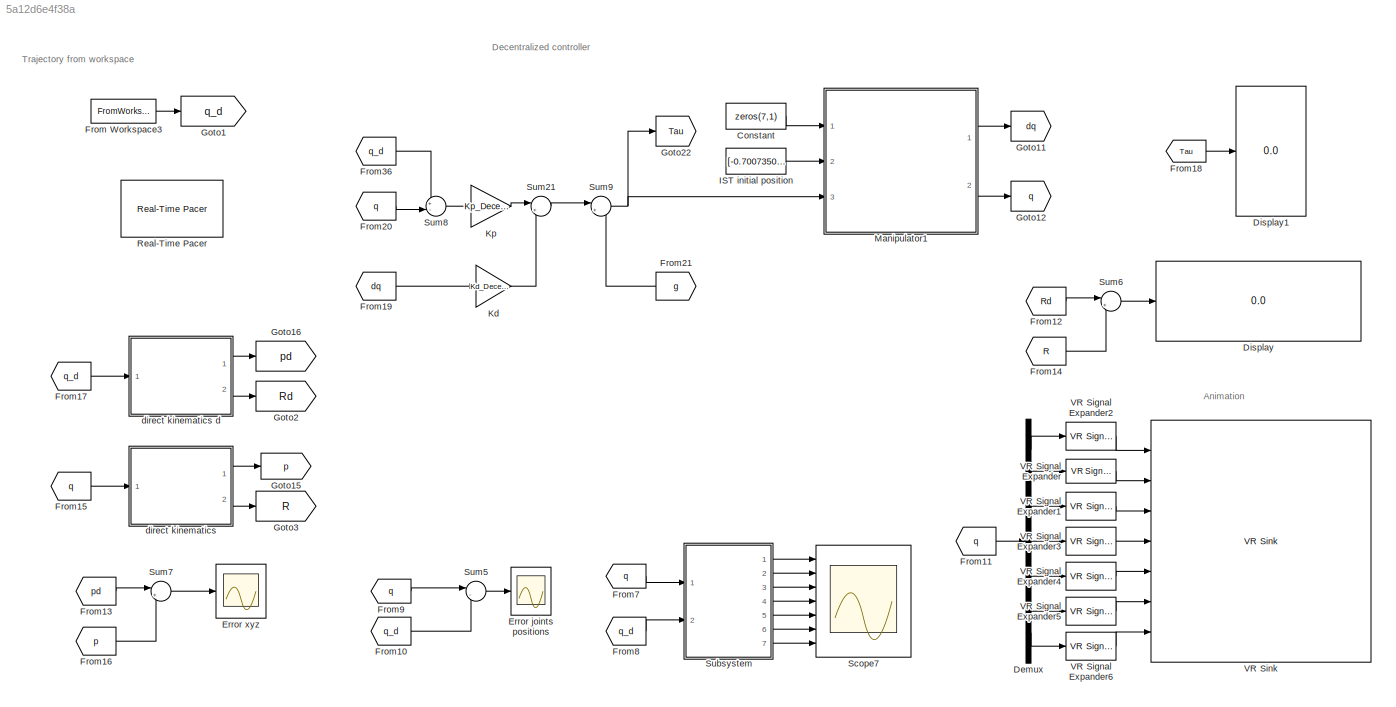
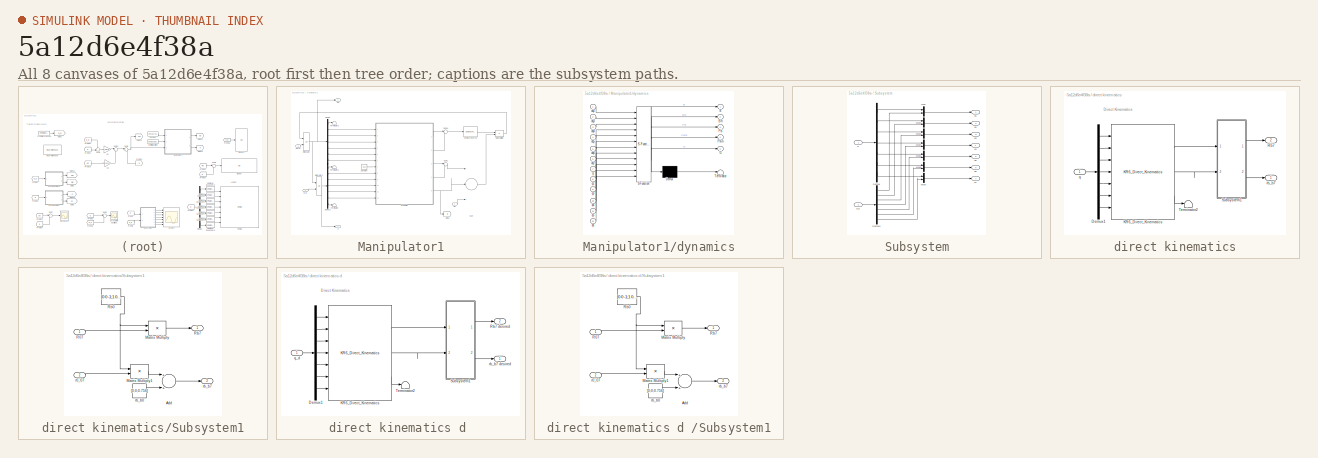
[diagram: thumbnail index - all 8 canvases of the model, root first then tree order]
MODEL slx_5a12d6e4f38a
KIND model
CONFIG AbsTol = auto
CONFIG EnableMultiTasking = off
CONFIG FixedStep = auto
CONFIG MaxStep = auto
CONFIG MinStep = auto
CONFIG RelTol = 1e-3
CONFIG SampleTimeConstraint = Unconstrained
CONFIG Solver = VariableStepAuto
CONFIG SolverName = VariableStepAuto
CONFIG StartTime = 0.0
CONFIG StopTime = 20
BLOCK [Constant] Constant
  Value = zeros(7,1)
BLOCK [Demux] Demux
  DisplayOption = bar
  Outputs = 7
  Ports = [1, 7]
BLOCK [Display] Display
  Decimation = 1
  Ports = [1]
BLOCK [Display] Display1
  Decimation = 1
  Ports = [1]
BLOCK [Scope] Error joints positions
  Floating = off
  NumInputPorts = 1
  Ports = [1]
  ScopeSpecificationString = Simulink.scopes.TimeScopeBlockCfg('CurrentConfiguration', extmgr.ConfigurationSet(extmgr.Configuration('Core','General UI',true),extmgr.Configuration('Core','Source UI',true),extmgr.Configuration('Sources','WiredSimulink',true,'DataLoggingVariableName','TrackingErrors','DataLogging',true,'DataLoggingSaveFormat','StructureWithTime'),extmgr.Configuration('Visuals','Time Domain',true,'SerializedDispl...<+1722ch>
BLOCK [Scope] Error xyz
  Floating = off
  NumInputPorts = 1
  Ports = [1]
  ScopeSpecificationString = Simulink.scopes.TimeScopeBlockCfg('CurrentConfiguration', extmgr.ConfigurationSet(extmgr.Configuration('Core','General UI',true),extmgr.Configuration('Core','Source UI',true),extmgr.Configuration('Sources','WiredSimulink',true,'DataLoggingVariableName','ScopeData2'),extmgr.Configuration('Visuals','Time Domain',true,'SerializedDisplays',{struct('MinYLimReal','-0.0427','MaxYLimReal','0.01291','YLabe...<+1797ch>
BLOCK [FromWorkspace] From Workspace3
  SampleTime = 0
  VariableName = q_d
  ZeroCross = on
BLOCK [From] From10
  GotoTag = q_d
BLOCK [From] From11
  GotoTag = q
BLOCK [From] From12
  GotoTag = Rd
BLOCK [From] From13
  GotoTag = pd
BLOCK [From] From14
  GotoTag = R
BLOCK [From] From15
  GotoTag = q
BLOCK [From] From16
  GotoTag = p
BLOCK [From] From17
  GotoTag = q_d
BLOCK [From] From18
  GotoTag = Tau
BLOCK [From] From19
  GotoTag = dq
BLOCK [From] From20
  GotoTag = q
BLOCK [From] From21
  GotoTag = g
  TagVisibility = global
BLOCK [From] From36
  GotoTag = q_d
BLOCK [From] From7
  GotoTag = q
BLOCK [From] From8
  GotoTag = q_d
BLOCK [From] From9
  GotoTag = q
BLOCK [Goto] Goto1
  GotoTag = q_d
BLOCK [Goto] Goto11
  GotoTag = dq
BLOCK [Goto] Goto12
  GotoTag = q
BLOCK [Goto] Goto15
  GotoTag = p
BLOCK [Goto] Goto16
  GotoTag = pd
BLOCK [Goto] Goto2
  GotoTag = Rd
BLOCK [Goto] Goto22
  GotoTag = Tau
BLOCK [Goto] Goto3
  GotoTag = R
BLOCK [Constant] IST initial position
  Value = [-0.700735072364346    0.260226322165590    -1.41409718169695    0.123044715609812    0.767247092108692    -0.379724450954367    0.840390763239879]
BLOCK [Gain] Kd
  Gain = Kd_Decent
  Multiplication = Matrix(K*u)
  OutDataTypeStr = Inherit: Inherit via internal rule
  ParamDataTypeStr = Inherit: Inherit via internal rule
  SaturateOnIntegerOverflow = off
BLOCK [Gain] Kp
  Gain = Kp_Decent
  Multiplication = Matrix(K*u)
  OutDataTypeStr = Inherit: Inherit via internal rule
  ParamDataTypeStr = Inherit: Inherit via internal rule
  SaturateOnIntegerOverflow = off
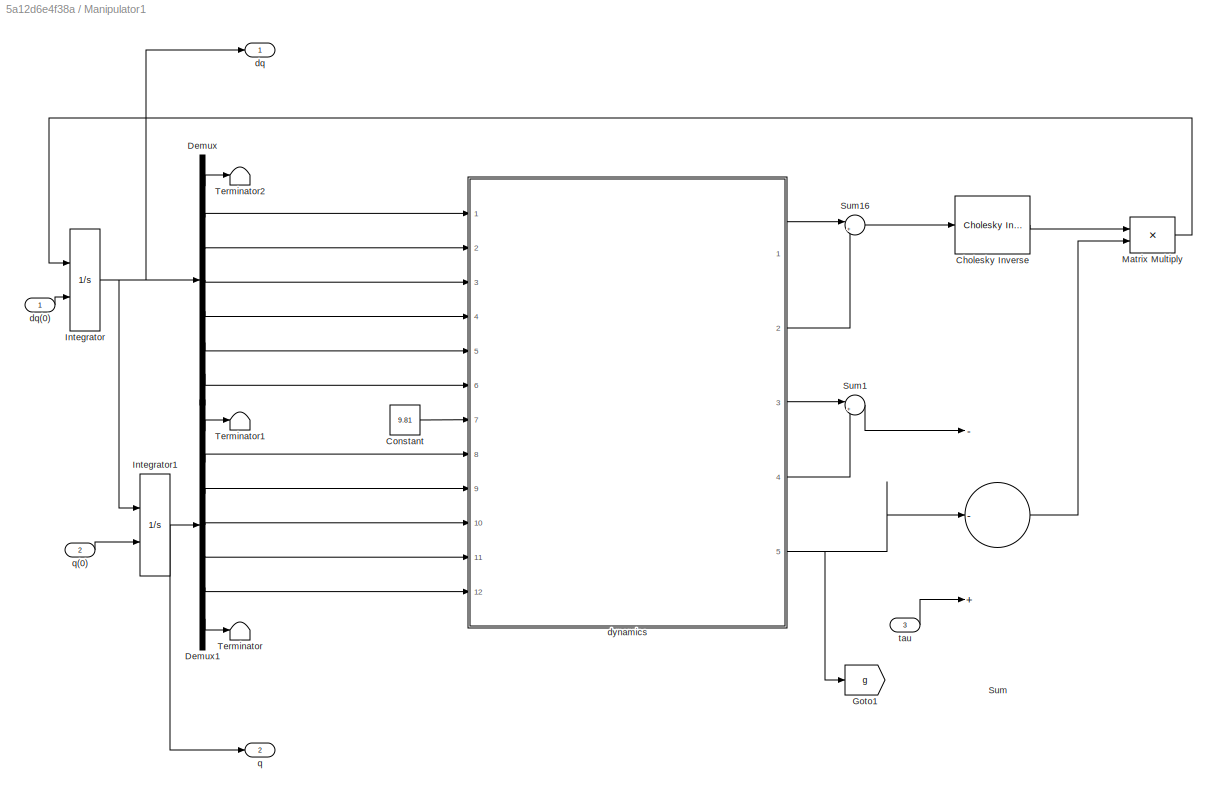
BLOCK [SubSystem] Manipulator1
  Ports = [3, 2]
  RequestExecContextInheritance = off
BLOCK [Reference] Manipulator1/Cholesky Inverse  REF=dspinverses/Cholesky Inverse
  Ports = [1, 1]
  SourceBlock = dspinverses/Cholesky Inverse
  SourceProductBaseCode = DS
  SourceProductName = DSP System Toolbox
  SourceType = Cholesky Inverse
BLOCK [Constant] Manipulator1/Constant
  Value = 9.81
BLOCK [Demux] Manipulator1/Demux
  DisplayOption = bar
  Outputs = 7
  Ports = [1, 7]
BLOCK [Demux] Manipulator1/Demux1
  DisplayOption = bar
  Outputs = 7
  Ports = [1, 7]
BLOCK [Goto] Manipulator1/Goto1
  GotoTag = g
  TagVisibility = global
BLOCK [Integrator] Manipulator1/Integrator
  InitialConditionSource = external
  Ports = [2, 1]
BLOCK [Integrator] Manipulator1/Integrator1
  InitialConditionSource = external
  Ports = [2, 1]
BLOCK [Product] Manipulator1/Matrix Multiply
  InputSameDT = off
  Multiplication = Matrix(*)
  OutDataTypeStr = Inherit: Inherit via internal rule
  Ports = [2, 1]
  RndMeth = Floor
  SaturateOnIntegerOverflow = off
BLOCK [Sum] Manipulator1/Sum
  InputSameDT = off
  Inputs = --+
  OutDataTypeStr = Inherit: Inherit via internal rule
  Ports = [3, 1]
  SaturateOnIntegerOverflow = off
BLOCK [Sum] Manipulator1/Sum1
  IconShape = round
  InputSameDT = off
  Inputs = |++
  OutDataTypeStr = Inherit: Inherit via internal rule
  Ports = [2, 1]
  SaturateOnIntegerOverflow = off
BLOCK [Sum] Manipulator1/Sum16
  IconShape = round
  InputSameDT = off
  Inputs = |++
  OutDataTypeStr = Inherit: Inherit via internal rule
  Ports = [2, 1]
  SaturateOnIntegerOverflow = off
BLOCK [Terminator] Manipulator1/Terminator
BLOCK [Terminator] Manipulator1/Terminator1
BLOCK [Terminator] Manipulator1/Terminator2
BLOCK [Outport] Manipulator1/dq
  IconDisplay = Port number
BLOCK [Inport] Manipulator1/dq(0) 
  IconDisplay = Port number
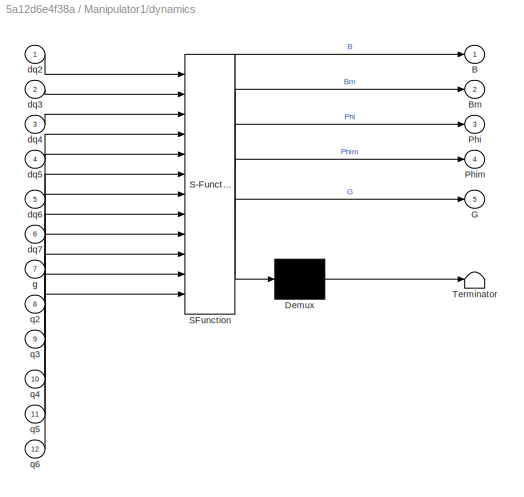
BLOCK [SubSystem] Manipulator1/dynamics
  ErrorFcn = Stateflow.Translate.translate
  PermitHierarchicalResolution = ExplicitOnly
  Ports = [12, 5]
  RequestExecContextInheritance = off
  SFBlockType = MATLAB Function
  TreatAsAtomicUnit = on
BLOCK [Demux] Manipulator1/dynamics/ Demux 
  Outputs = 1
  Ports = [1, 1]
BLOCK [S-Function] Manipulator1/dynamics/ SFunction 
  EnableBusSupport = on
  FunctionName = sf_sfun
  PortCounts = [12 6]
  Ports = [12, 6]
  SFcnIsStateOwnerBlock = off
  SFunctionDeploymentMode = off
  Tag = Stateflow S-Function KR6_Decentralized_Trajectory 12
BLOCK [Terminator] Manipulator1/dynamics/ Terminator 
BLOCK [Outport] Manipulator1/dynamics/B
  IconDisplay = Port number
BLOCK [Outport] Manipulator1/dynamics/Bm
  IconDisplay = Port number
  Port = 2
BLOCK [Outport] Manipulator1/dynamics/G
  IconDisplay = Port number
  Port = 5
BLOCK [Outport] Manipulator1/dynamics/Phi
  IconDisplay = Port number
  Port = 3
BLOCK [Outport] Manipulator1/dynamics/Phim
  IconDisplay = Port number
  Port = 4
BLOCK [Inport] Manipulator1/dynamics/dq2
  IconDisplay = Port number
BLOCK [Inport] Manipulator1/dynamics/dq3
  IconDisplay = Port number
  Port = 2
BLOCK [Inport] Manipulator1/dynamics/dq4
  IconDisplay = Port number
  Port = 3
BLOCK [Inport] Manipulator1/dynamics/dq5
  IconDisplay = Port number
  Port = 4
BLOCK [Inport] Manipulator1/dynamics/dq6
  IconDisplay = Port number
  Port = 5
BLOCK [Inport] Manipulator1/dynamics/dq7
  IconDisplay = Port number
  Port = 6
BLOCK [Inport] Manipulator1/dynamics/g
  IconDisplay = Port number
  Port = 7
BLOCK [Inport] Manipulator1/dynamics/q2
  IconDisplay = Port number
  Port = 8
BLOCK [Inport] Manipulator1/dynamics/q3
  IconDisplay = Port number
  Port = 9
BLOCK [Inport] Manipulator1/dynamics/q4
  IconDisplay = Port number
  Port = 10
BLOCK [Inport] Manipulator1/dynamics/q5
  IconDisplay = Port number
  Port = 11
BLOCK [Inport] Manipulator1/dynamics/q6
  IconDisplay = Port number
  Port = 12
BLOCK [Outport] Manipulator1/q
  IconDisplay = Port number
  Port = 2
BLOCK [Inport] Manipulator1/q(0) 
  IconDisplay = Port number
  Port = 2
BLOCK [Inport] Manipulator1/tau
  IconDisplay = Port number
  Port = 3
BLOCK [Reference] Real-Time Pacer  REF=realtime_pacer_lib/Real-Time Pacer
  Ports = []
  SourceBlock = realtime_pacer_lib/Real-Time Pacer
  SourceType = RealTime_Pacer
BLOCK [Scope] Scope7
  Floating = off
  NumInputPorts = 7
  Ports = [7]
  ScopeSpecificationString = Simulink.scopes.TimeScopeBlockCfg('CurrentConfiguration', extmgr.ConfigurationSet(extmgr.Configuration('Core','General UI',true),extmgr.Configuration('Core','Source UI',true),extmgr.Configuration('Sources','WiredSimulink',true,'DataLoggingVariableName','ScopeData7'),extmgr.Configuration('Visuals','Time Domain',true,'SerializedDisplays',{struct('MinYLimReal','-0.18751','MaxYLimReal','1.6876','YLabe...<+6624ch>
BLOCK [SubSystem] Subsystem
  Ports = [2, 7]
  RequestExecContextInheritance = off
BLOCK [Demux] Subsystem/Demux
  DisplayOption = bar
  Outputs = 7
  Ports = [1, 7]
BLOCK [Demux] Subsystem/Demux1
  DisplayOption = bar
  Outputs = 7
  Ports = [1, 7]
BLOCK [Mux] Subsystem/Mux
  DisplayOption = bar
  Inputs = 2
  Ports = [2, 1]
BLOCK [Mux] Subsystem/Mux2
  DisplayOption = bar
  Inputs = 2
  Ports = [2, 1]
BLOCK [Mux] Subsystem/Mux3
  DisplayOption = bar
  Inputs = 2
  Ports = [2, 1]
BLOCK [Mux] Subsystem/Mux4
  DisplayOption = bar
  Inputs = 2
  Ports = [2, 1]
BLOCK [Mux] Subsystem/Mux5
  DisplayOption = bar
  Inputs = 2
  Ports = [2, 1]
BLOCK [Mux] Subsystem/Mux6
  DisplayOption = bar
  Inputs = 2
  Ports = [2, 1]
BLOCK [Mux] Subsystem/Mux7
  DisplayOption = bar
  Inputs = 2
  Ports = [2, 1]
BLOCK [Inport] Subsystem/q
  IconDisplay = Port number
BLOCK [Outport] Subsystem/q1
  IconDisplay = Port number
BLOCK [Outport] Subsystem/q2
  IconDisplay = Port number
  Port = 2
BLOCK [Outport] Subsystem/q3
  IconDisplay = Port number
  Port = 3
BLOCK [Outport] Subsystem/q4
  IconDisplay = Port number
  Port = 4
BLOCK [Outport] Subsystem/q5
  IconDisplay = Port number
  Port = 5
BLOCK [Outport] Subsystem/q6
  IconDisplay = Port number
  Port = 6
BLOCK [Outport] Subsystem/q7
  IconDisplay = Port number
  Port = 7
BLOCK [Inport] Subsystem/q_d
  IconDisplay = Port number
  Port = 2
BLOCK [Sum] Sum21
  IconShape = round
  InputSameDT = off
  Inputs = |+-
  OutDataTypeStr = Inherit: Inherit via internal rule
  Ports = [2, 1]
  SaturateOnIntegerOverflow = off
BLOCK [Sum] Sum5
  IconShape = round
  InputSameDT = off
  Inputs = |-+
  OutDataTypeStr = Inherit: Inherit via internal rule
  Ports = [2, 1]
  SaturateOnIntegerOverflow = off
BLOCK [Sum] Sum6
  IconShape = round
  InputSameDT = off
  Inputs = |+-
  OutDataTypeStr = Inherit: Inherit via internal rule
  Ports = [2, 1]
  SaturateOnIntegerOverflow = off
BLOCK [Sum] Sum7
  IconShape = round
  InputSameDT = off
  Inputs = |+-
  OutDataTypeStr = Inherit: Inherit via internal rule
  Ports = [2, 1]
  SaturateOnIntegerOverflow = off
BLOCK [Sum] Sum8
  IconShape = round
  InputSameDT = off
  Inputs = +-|
  OutDataTypeStr = Inherit: Inherit via internal rule
  Ports = [2, 1]
  SaturateOnIntegerOverflow = off
BLOCK [Sum] Sum9
  IconShape = round
  InputSameDT = off
  Inputs = |++
  OutDataTypeStr = Inherit: Inherit via internal rule
  Ports = [2, 1]
  SaturateOnIntegerOverflow = off
BLOCK [Reference] VR Signal Expander  REF=vrlib/VR Signal Expander
  Ports = [1, 1]
  SourceBlock = vrlib/VR Signal Expander
  SourceProductBaseCode = VR
  SourceProductName = Simulink 3D Animation
  SourceType = VR Signal Expander
BLOCK [Reference] VR Signal Expander1  REF=vrlib/VR Signal Expander
  Ports = [1, 1]
  SourceBlock = vrlib/VR Signal Expander
  SourceProductBaseCode = VR
  SourceProductName = Simulink 3D Animation
  SourceType = VR Signal Expander
BLOCK [Reference] VR Signal Expander2  REF=vrlib/VR Signal Expander
  Ports = [1, 1]
  SourceBlock = vrlib/VR Signal Expander
  SourceProductBaseCode = VR
  SourceProductName = Simulink 3D Animation
  SourceType = VR Signal Expander
BLOCK [Reference] VR Signal Expander3  REF=vrlib/VR Signal Expander
  Ports = [1, 1]
  SourceBlock = vrlib/VR Signal Expander
  SourceProductBaseCode = VR
  SourceProductName = Simulink 3D Animation
  SourceType = VR Signal Expander
BLOCK [Reference] VR Signal Expander4  REF=vrlib/VR Signal Expander
  Ports = [1, 1]
  SourceBlock = vrlib/VR Signal Expander
  SourceProductBaseCode = VR
  SourceProductName = Simulink 3D Animation
  SourceType = VR Signal Expander
BLOCK [Reference] VR Signal Expander5  REF=vrlib/VR Signal Expander
  Ports = [1, 1]
  SourceBlock = vrlib/VR Signal Expander
  SourceProductBaseCode = VR
  SourceProductName = Simulink 3D Animation
  SourceType = VR Signal Expander
BLOCK [Reference] VR Signal Expander6  REF=vrlib/VR Signal Expander
  Ports = [1, 1]
  SourceBlock = vrlib/VR Signal Expander
  SourceProductBaseCode = VR
  SourceProductName = Simulink 3D Animation
  SourceType = VR Signal Expander
BLOCK [Reference] VR Sink  REF=vrlib/VR Sink
  InstantiateOnLoad = on
  Ports = [7]
  SourceBlock = vrlib/VR Sink
  SourceProductBaseCode = VR
  SourceProductName = Simulink 3D Animation
  SourceType = Virtual Reality Sink
BLOCK [SubSystem] direct kinematics
  Ports = [1, 2]
  RequestExecContextInheritance = off
BLOCK [SubSystem] direct kinematics d 
  Ports = [1, 2]
  RequestExecContextInheritance = off
BLOCK [Demux] direct kinematics d /Demux1
  DisplayOption = bar
  Outputs = 7
  Ports = [1, 7]
BLOCK [Reference] direct kinematics d /KR6_Direct_Kinematics  REF=KR6_Lib/KR6_Direct_Kinematics
  Ports = [7, 3]
  SourceBlock = KR6_Lib/KR6_Direct_Kinematics
  SourceType = SubSystem
BLOCK [Outport] direct kinematics d /Rb7 desired
  IconDisplay = Port number
  Port = 2
BLOCK [SubSystem] direct kinematics d /Subsystem1
  Ports = [2, 2]
  RequestExecContextInheritance = off
BLOCK [Sum] direct kinematics d /Subsystem1/Add
  InputSameDT = off
  OutDataTypeStr = Inherit: Inherit via internal rule
  Ports = [2, 1]
  SaturateOnIntegerOverflow = off
BLOCK [Product] direct kinematics d /Subsystem1/Matrix Multiply
  InputSameDT = off
  Multiplication = Matrix(*)
  OutDataTypeStr = Inherit: Inherit via internal rule
  Ports = [2, 1]
  RndMeth = Floor
  SaturateOnIntegerOverflow = off
BLOCK [Product] direct kinematics d /Subsystem1/Matrix Multiply1
  InputSameDT = off
  Multiplication = Matrix(*)
  OutDataTypeStr = Inherit: Inherit via internal rule
  Ports = [2, 1]
  RndMeth = Floor
  SaturateOnIntegerOverflow = off
BLOCK [Inport] direct kinematics d /Subsystem1/R07
  IconDisplay = Port number
BLOCK [Constant] direct kinematics d /Subsystem1/Rb0
  Value = [0 0 -1;1 0 0; 0 -1 0]
BLOCK [Outport] direct kinematics d /Subsystem1/Rb7
  IconDisplay = Port number
BLOCK [Inport] direct kinematics d /Subsystem1/r0_07
  IconDisplay = Port number
  Port = 2
BLOCK [Constant] direct kinematics d /Subsystem1/rb_b0
  Value = [0;0;0.756]
BLOCK [Outport] direct kinematics d /Subsystem1/rb_b7
  IconDisplay = Port number
  Port = 2
BLOCK [Terminator] direct kinematics d /Terminator2
BLOCK [Inport] direct kinematics d /q_d
  IconDisplay = Port number
BLOCK [Outport] direct kinematics d /rb_b7 desired
  IconDisplay = Port number
BLOCK [Demux] direct kinematics/Demux1
  DisplayOption = bar
  Outputs = 7
  Ports = [1, 7]
BLOCK [Reference] direct kinematics/KR6_Direct_Kinematics  REF=KR6_Lib/KR6_Direct_Kinematics
  Ports = [7, 3]
  SourceBlock = KR6_Lib/KR6_Direct_Kinematics
  SourceType = SubSystem
BLOCK [Outport] direct kinematics/Rb7
  IconDisplay = Port number
  Port = 2
BLOCK [SubSystem] direct kinematics/Subsystem1
  Ports = [2, 2]
  RequestExecContextInheritance = off
BLOCK [Sum] direct kinematics/Subsystem1/Add
  InputSameDT = off
  OutDataTypeStr = Inherit: Inherit via internal rule
  Ports = [2, 1]
  SaturateOnIntegerOverflow = off
BLOCK [Product] direct kinematics/Subsystem1/Matrix Multiply
  InputSameDT = off
  Multiplication = Matrix(*)
  OutDataTypeStr = Inherit: Inherit via internal rule
  Ports = [2, 1]
  RndMeth = Floor
  SaturateOnIntegerOverflow = off
BLOCK [Product] direct kinematics/Subsystem1/Matrix Multiply1
  InputSameDT = off
  Multiplication = Matrix(*)
  OutDataTypeStr = Inherit: Inherit via internal rule
  Ports = [2, 1]
  RndMeth = Floor
  SaturateOnIntegerOverflow = off
BLOCK [Inport] direct kinematics/Subsystem1/R07
  IconDisplay = Port number
BLOCK [Constant] direct kinematics/Subsystem1/Rb0
  Value = [0 0 -1;1 0 0; 0 -1 0]
BLOCK [Outport] direct kinematics/Subsystem1/Rb7
  IconDisplay = Port number
BLOCK [Inport] direct kinematics/Subsystem1/r0_07
  IconDisplay = Port number
  Port = 2
BLOCK [Constant] direct kinematics/Subsystem1/rb_b0
  Value = [0;0;0.756]
BLOCK [Outport] direct kinematics/Subsystem1/rb_b7
  IconDisplay = Port number
  Port = 2
BLOCK [Terminator] direct kinematics/Terminator2
BLOCK [Inport] direct kinematics/q
  IconDisplay = Port number
BLOCK [Outport] direct kinematics/rb_b7 
  IconDisplay = Port number
ANNOTATION (root): Animation
ANNOTATION (root): Decentralized controller
ANNOTATION (root): Trajectory from workspace
ANNOTATION direct kinematics: Direct Kinematics
ANNOTATION direct kinematics d : Direct Kinematics
LINE Constant:1 -> Manipulator1:1
LINE Demux:1 -> VR Signal Expander2:1
LINE Demux:2 -> VR Signal Expander:1
LINE Demux:3 -> VR Signal Expander1:1
LINE Demux:4 -> VR Signal Expander3:1
LINE Demux:5 -> VR Signal Expander4:1
LINE Demux:6 -> VR Signal Expander5:1
LINE Demux:7 -> VR Signal Expander6:1
LINE From Workspace3:1 -> Goto1:1
LINE From10:1 -> Sum5:2
LINE From11:1 -> Demux:1
LINE From12:1 -> Sum6:1
LINE From13:1 -> Sum7:1
LINE From14:1 -> Sum6:2
LINE From15:1 -> direct kinematics:1
LINE From16:1 -> Sum7:2
LINE From17:1 -> direct kinematics d :1
LINE From18:1 -> Display1:1
LINE From19:1 -> Kd:1
LINE From20:1 -> Sum8:2
LINE From21:1 -> Sum9:2
LINE From36:1 -> Sum8:1
LINE From7:1 -> Subsystem:1
LINE From8:1 -> Subsystem:2
LINE From9:1 -> Sum5:1
LINE IST initial position:1 -> Manipulator1:2
LINE Kd:1 -> Sum21:2
LINE Kp:1 -> Sum21:1
LINE Manipulator1/Cholesky Inverse:1 -> Manipulator1/Matrix Multiply:1
LINE Manipulator1/Constant:1 -> Manipulator1/dynamics:7
LINE Manipulator1/Demux1:1 -> Manipulator1/Terminator1:1
LINE Manipulator1/Demux1:2 -> Manipulator1/dynamics:8
LINE Manipulator1/Demux1:3 -> Manipulator1/dynamics:9
LINE Manipulator1/Demux1:4 -> Manipulator1/dynamics:10
LINE Manipulator1/Demux1:5 -> Manipulator1/dynamics:11
LINE Manipulator1/Demux1:6 -> Manipulator1/dynamics:12
LINE Manipulator1/Demux1:7 -> Manipulator1/Terminator:1
LINE Manipulator1/Demux:1 -> Manipulator1/Terminator2:1
LINE Manipulator1/Demux:2 -> Manipulator1/dynamics:1
LINE Manipulator1/Demux:3 -> Manipulator1/dynamics:2
LINE Manipulator1/Demux:4 -> Manipulator1/dynamics:3
LINE Manipulator1/Demux:5 -> Manipulator1/dynamics:4
LINE Manipulator1/Demux:6 -> Manipulator1/dynamics:5
LINE Manipulator1/Demux:7 -> Manipulator1/dynamics:6
NET Manipulator1/Integrator1:1 -> Manipulator1/Demux1:1, Manipulator1/q:1
NET Manipulator1/Integrator:1 -> Manipulator1/Demux:1, Manipulator1/Integrator1:1, Manipulator1/dq:1
LINE Manipulator1/Matrix Multiply:1 -> Manipulator1/Integrator:1
LINE Manipulator1/Sum16:1 -> Manipulator1/Cholesky Inverse:1
LINE Manipulator1/Sum1:1 -> Manipulator1/Sum:1
LINE Manipulator1/Sum:1 -> Manipulator1/Matrix Multiply:2
LINE Manipulator1/dq(0) :1 -> Manipulator1/Integrator:2
LINE Manipulator1/dynamics:1 -> Manipulator1/Sum16:1
LINE Manipulator1/dynamics:2 -> Manipulator1/Sum16:2
LINE Manipulator1/dynamics:3 -> Manipulator1/Sum1:1
LINE Manipulator1/dynamics:4 -> Manipulator1/Sum1:2
NET Manipulator1/dynamics:5 -> Manipulator1/Goto1:1, Manipulator1/Sum:2
LINE Manipulator1/q(0) :1 -> Manipulator1/Integrator1:2
LINE Manipulator1/tau:1 -> Manipulator1/Sum:3
LINE Manipulator1:1 -> Goto11:1
LINE Manipulator1:2 -> Goto12:1
LINE Subsystem/Demux1:1 -> Subsystem/Mux:2
LINE Subsystem/Demux1:2 -> Subsystem/Mux2:2
LINE Subsystem/Demux1:3 -> Subsystem/Mux3:2
LINE Subsystem/Demux1:4 -> Subsystem/Mux4:2
LINE Subsystem/Demux1:5 -> Subsystem/Mux5:2
LINE Subsystem/Demux1:6 -> Subsystem/Mux6:2
LINE Subsystem/Demux1:7 -> Subsystem/Mux7:2
LINE Subsystem/Demux:1 -> Subsystem/Mux:1
LINE Subsystem/Demux:2 -> Subsystem/Mux2:1
LINE Subsystem/Demux:3 -> Subsystem/Mux3:1
LINE Subsystem/Demux:4 -> Subsystem/Mux4:1
LINE Subsystem/Demux:5 -> Subsystem/Mux5:1
LINE Subsystem/Demux:6 -> Subsystem/Mux6:1
LINE Subsystem/Demux:7 -> Subsystem/Mux7:1
LINE Subsystem/Mux2:1 -> Subsystem/q2:1
LINE Subsystem/Mux3:1 -> Subsystem/q3:1
LINE Subsystem/Mux4:1 -> Subsystem/q4:1
LINE Subsystem/Mux5:1 -> Subsystem/q5:1
LINE Subsystem/Mux6:1 -> Subsystem/q6:1
LINE Subsystem/Mux7:1 -> Subsystem/q7:1
LINE Subsystem/Mux:1 -> Subsystem/q1:1
LINE Subsystem/q:1 -> Subsystem/Demux:1
LINE Subsystem/q_d:1 -> Subsystem/Demux1:1
LINE Subsystem:1 -> Scope7:1
LINE Subsystem:2 -> Scope7:2
LINE Subsystem:3 -> Scope7:3
LINE Subsystem:4 -> Scope7:4
LINE Subsystem:5 -> Scope7:5
LINE Subsystem:6 -> Scope7:6
LINE Subsystem:7 -> Scope7:7
LINE Sum21:1 -> Sum9:1
LINE Sum5:1 -> Error joints positions:1
LINE Sum6:1 -> Display:1
LINE Sum7:1 -> Error xyz:1
LINE Sum8:1 -> Kp:1
NET Sum9:1 -> Goto22:1, Manipulator1:3
LINE VR Signal Expander1:1 -> VR Sink:3
LINE VR Signal Expander2:1 -> VR Sink:1
LINE VR Signal Expander3:1 -> VR Sink:4
LINE VR Signal Expander4:1 -> VR Sink:5
LINE VR Signal Expander5:1 -> VR Sink:6
LINE VR Signal Expander6:1 -> VR Sink:7
LINE VR Signal Expander:1 -> VR Sink:2
LINE direct kinematics d /Demux1:1 -> direct kinematics d /KR6_Direct_Kinematics:1
LINE direct kinematics d /Demux1:2 -> direct kinematics d /KR6_Direct_Kinematics:2
LINE direct kinematics d /Demux1:3 -> direct kinematics d /KR6_Direct_Kinematics:3
LINE direct kinematics d /Demux1:4 -> direct kinematics d /KR6_Direct_Kinematics:4
LINE direct kinematics d /Demux1:5 -> direct kinematics d /KR6_Direct_Kinematics:5
LINE direct kinematics d /Demux1:6 -> direct kinematics d /KR6_Direct_Kinematics:6
LINE direct kinematics d /Demux1:7 -> direct kinematics d /KR6_Direct_Kinematics:7
LINE direct kinematics d /KR6_Direct_Kinematics:1 -> direct kinematics d /Subsystem1:1
LINE direct kinematics d /KR6_Direct_Kinematics:2 -> direct kinematics d /Subsystem1:2
LINE direct kinematics d /KR6_Direct_Kinematics:3 -> direct kinematics d /Terminator2:1
LINE direct kinematics d /Subsystem1/Add:1 -> direct kinematics d /Subsystem1/rb_b7:1
LINE direct kinematics d /Subsystem1/Matrix Multiply1:1 -> direct kinematics d /Subsystem1/Add:1
LINE direct kinematics d /Subsystem1/Matrix Multiply:1 -> direct kinematics d /Subsystem1/Rb7:1
LINE direct kinematics d /Subsystem1/R07:1 -> direct kinematics d /Subsystem1/Matrix Multiply:2
NET direct kinematics d /Subsystem1/Rb0:1 -> direct kinematics d /Subsystem1/Matrix Multiply1:1, direct kinematics d /Subsystem1/Matrix Multiply:1
LINE direct kinematics d /Subsystem1/r0_07:1 -> direct kinematics d /Subsystem1/Matrix Multiply1:2
LINE direct kinematics d /Subsystem1/rb_b0:1 -> direct kinematics d /Subsystem1/Add:2
LINE direct kinematics d /Subsystem1:1 -> direct kinematics d /Rb7 desired:1
LINE direct kinematics d /Subsystem1:2 -> direct kinematics d /rb_b7 desired:1
LINE direct kinematics d /q_d:1 -> direct kinematics d /Demux1:1
LINE direct kinematics d :1 -> Goto16:1
LINE direct kinematics d :2 -> Goto2:1
LINE direct kinematics/Demux1:1 -> direct kinematics/KR6_Direct_Kinematics:1
LINE direct kinematics/Demux1:2 -> direct kinematics/KR6_Direct_Kinematics:2
LINE direct kinematics/Demux1:3 -> direct kinematics/KR6_Direct_Kinematics:3
LINE direct kinematics/Demux1:4 -> direct kinematics/KR6_Direct_Kinematics:4
LINE direct kinematics/Demux1:5 -> direct kinematics/KR6_Direct_Kinematics:5
LINE direct kinematics/Demux1:6 -> direct kinematics/KR6_Direct_Kinematics:6
LINE direct kinematics/Demux1:7 -> direct kinematics/KR6_Direct_Kinematics:7
LINE direct kinematics/KR6_Direct_Kinematics:1 -> direct kinematics/Subsystem1:1
LINE direct kinematics/KR6_Direct_Kinematics:2 -> direct kinematics/Subsystem1:2
LINE direct kinematics/KR6_Direct_Kinematics:3 -> direct kinematics/Terminator2:1
LINE direct kinematics/Subsystem1/Add:1 -> direct kinematics/Subsystem1/rb_b7:1
LINE direct kinematics/Subsystem1/Matrix Multiply1:1 -> direct kinematics/Subsystem1/Add:1
LINE direct kinematics/Subsystem1/Matrix Multiply:1 -> direct kinematics/Subsystem1/Rb7:1
LINE direct kinematics/Subsystem1/R07:1 -> direct kinematics/Subsystem1/Matrix Multiply:2
NET direct kinematics/Subsystem1/Rb0:1 -> direct kinematics/Subsystem1/Matrix Multiply1:1, direct kinematics/Subsystem1/Matrix Multiply:1
LINE direct kinematics/Subsystem1/r0_07:1 -> direct kinematics/Subsystem1/Matrix Multiply1:2
LINE direct kinematics/Subsystem1/rb_b0:1 -> direct kinematics/Subsystem1/Add:2
LINE direct kinematics/Subsystem1:1 -> direct kinematics/Rb7:1
LINE direct kinematics/Subsystem1:2 -> direct kinematics/rb_b7 :1
LINE direct kinematics/q:1 -> direct kinematics/Demux1:1
LINE direct kinematics:1 -> Goto15:1
LINE direct kinematics:2 -> Goto3:1
note: NET lines group one-source signal fan-out (src -> all destinations, sorted); 1:1 wires keep LINE
CHART Manipulator1/dynamics states=1 transitions=1
  STATE_LABEL 'eML_blk_kernel()'
  STATE_LABEL 'SCRIPT:\nfunction [B,Bm,Phi,Phim,G] = dynamics(dq2,dq3,dq4,dq5,dq6,dq7,g,q2,q3,q4,q5,q6)\n%#codegen\n\n%    This function was generated by the Symbolic Math Toolbox version 8.1.\n%    27-May-2020 20:53:49\n\nt2 = cos(q2);\nt3 = sin(q2);\nt4 = sin(q5);\nt5 = cos(q3);\nt6 = cos(q4);\nt7 = sin(q3);\nt8 = sin(q4);\nt9 = cos(q5);\nt10 = cos(q6);\nt11 = sin(q6);\nt12 = t7.*t8.*1.4164748e7;\nt13 = t4.*t5.*t8.*1.79145e5;\nt...<+3608ch>'
